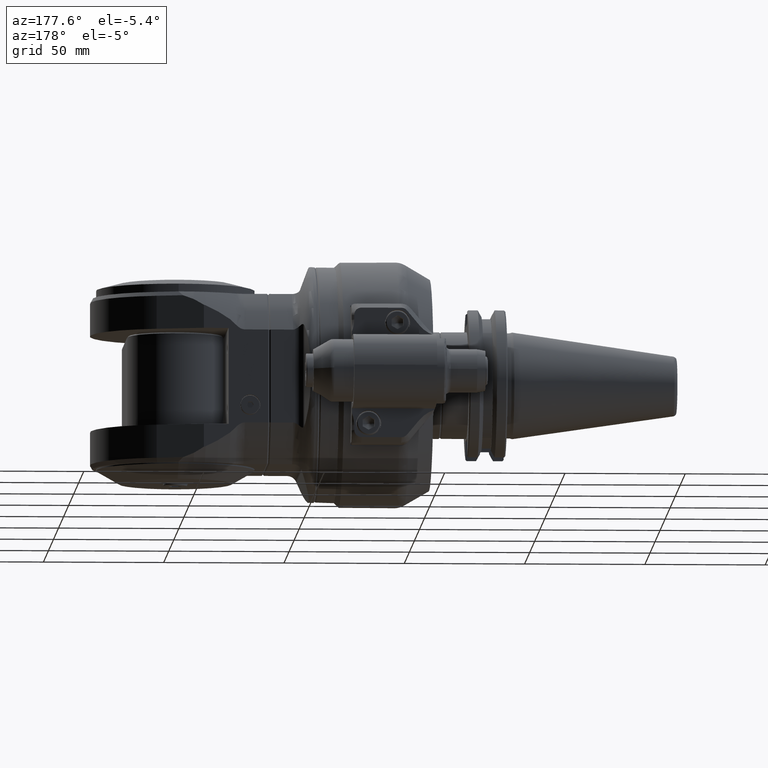
[diagram: clean part render]
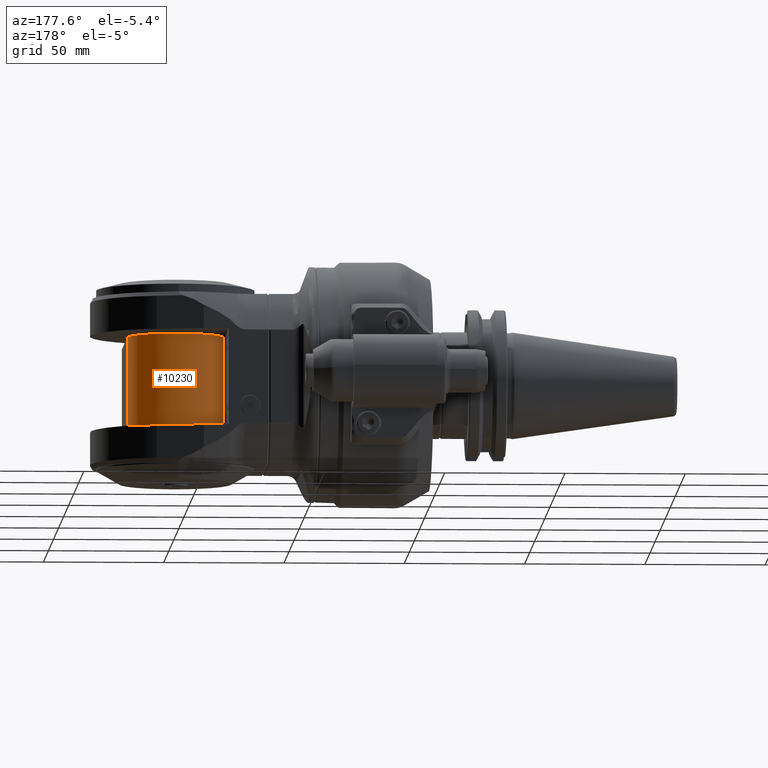
[diagram: same view with one face highlighted and labeled with its STEP entity id]
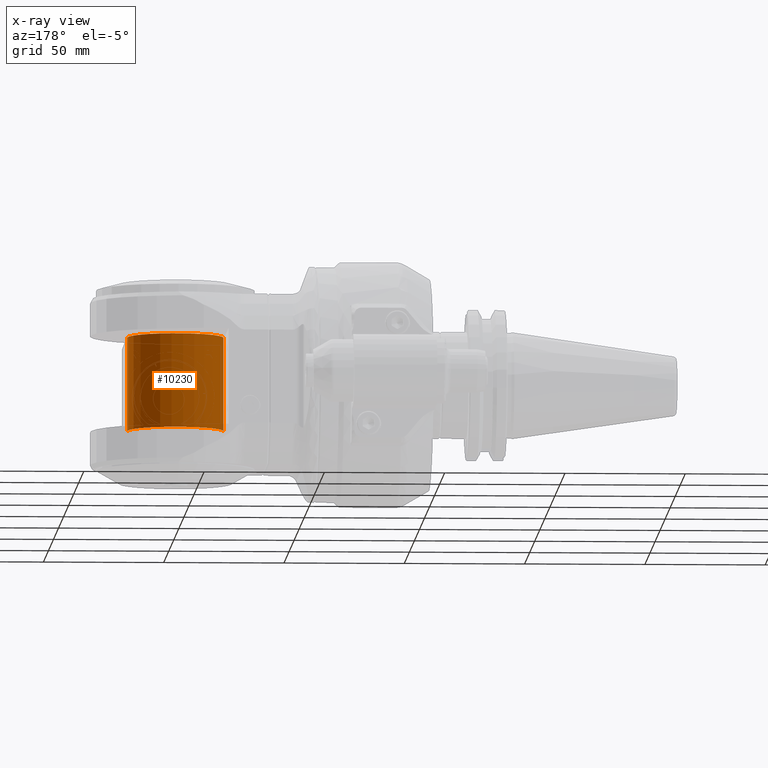
[diagram: x-ray of the same camera — body ghosted, the highlighted face saturated]
A machine part, auxiliary view. The second image highlights one B-rep face of the part: STEP entity #10230.
The next image is the same camera in x-ray: the body ghosted, the highlighted face saturated — about 0% of this face is hidden behind the body in this view.
In plain terms, the highlighted cylindrical surface (partial cylindrical patch) has radius 20 mm, axis along (-0, 0, -1).
Its self-contained STEP definition (entity closure, byte-faithful):
#106=CYLINDRICAL_SURFACE('',#11071,20.);
#611=CIRCLE('',#11070,20.);
#612=CIRCLE('',#11072,20.);
#1147=FACE_OUTER_BOUND('',#1809,.T.);
#1809=EDGE_LOOP('',(#7642,#7643,#7644,#7645));
#2458=LINE('',#16093,#3175);
#2505=LINE('',#16293,#3222);
#3175=VECTOR('',#12533,39.);
#3222=VECTOR('',#12694,39.);
#4336=VERTEX_POINT('',#16090);
#4337=VERTEX_POINT('',#16092);
#4390=VERTEX_POINT('',#16288);
#4391=VERTEX_POINT('',#16292);
#5478=EDGE_CURVE('',#4337,#4336,#2458,.T.);
#5560=EDGE_CURVE('',#4391,#4390,#2505,.T.);
#5603=EDGE_CURVE('',#4391,#4336,#611,.T.);
#5604=EDGE_CURVE('',#4337,#4390,#612,.T.);
#7642=ORIENTED_EDGE('',*,*,#5604,.F.);
#7643=ORIENTED_EDGE('',*,*,#5478,.T.);
#7644=ORIENTED_EDGE('',*,*,#5603,.F.);
#7645=ORIENTED_EDGE('',*,*,#5560,.T.);
#10230=ADVANCED_FACE('',(#1147),#106,.T.);
#11070=AXIS2_PLACEMENT_3D('',#16397,#12784,#12785);
#11071=AXIS2_PLACEMENT_3D('',#16398,#12786,#12787);
#11072=AXIS2_PLACEMENT_3D('',#16399,#12788,#12789);
#12533=DIRECTION('',(-1.,0.,0.));
#12694=DIRECTION('',(1.,0.,0.));
#12784=DIRECTION('center_axis',(-1.,0.,0.));
#12785=DIRECTION('ref_axis',(0.,1.,0.));
#12786=DIRECTION('center_axis',(-1.,0.,0.));
#12787=DIRECTION('ref_axis',(0.,1.22464679914735E-16,-1.));
#12788=DIRECTION('center_axis',(1.,0.,0.));
#12789=DIRECTION('ref_axis',(0.,0.,-1.));
#16090=CARTESIAN_POINT('',(-19.4999999999999,-20.,0.));
#16092=CARTESIAN_POINT('',(19.5000000000001,-20.,0.));
#16093=CARTESIAN_POINT('',(19.5000000000001,-20.,0.));
#16288=CARTESIAN_POINT('',(19.5000000000001,20.,0.));
#16292=CARTESIAN_POINT('',(-19.4999999999999,20.,0.));
#16293=CARTESIAN_POINT('',(-19.4999999999999,20.,0.));
#16397=CARTESIAN_POINT('Origin',(-19.4999999999999,0.,0.));
#16398=CARTESIAN_POINT('Origin',(1.290163504983E-13,0.,0.));
#16399=CARTESIAN_POINT('Origin',(19.5000000000001,0.,0.));